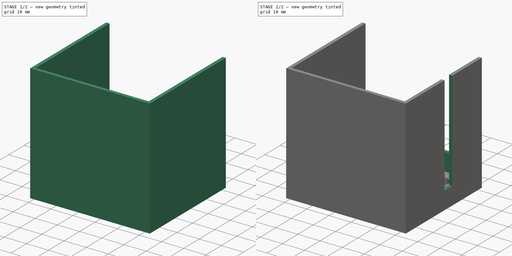
[diagram: build sequence overview — one tinted view per stage of 2, left to right]
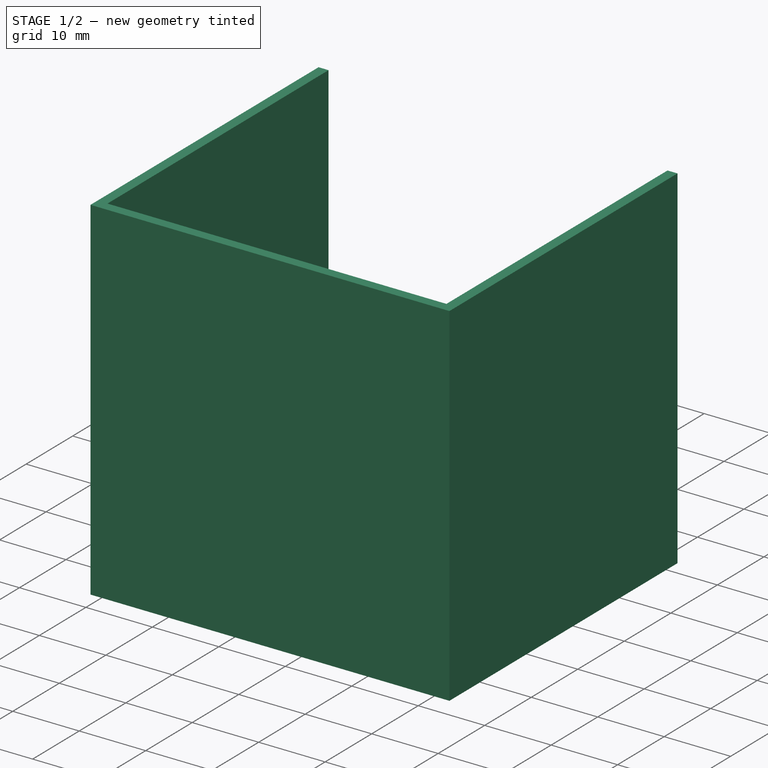
[diagram: stage 1 of 2 — iso view after this stage's code; geometry added in this stage tinted green]
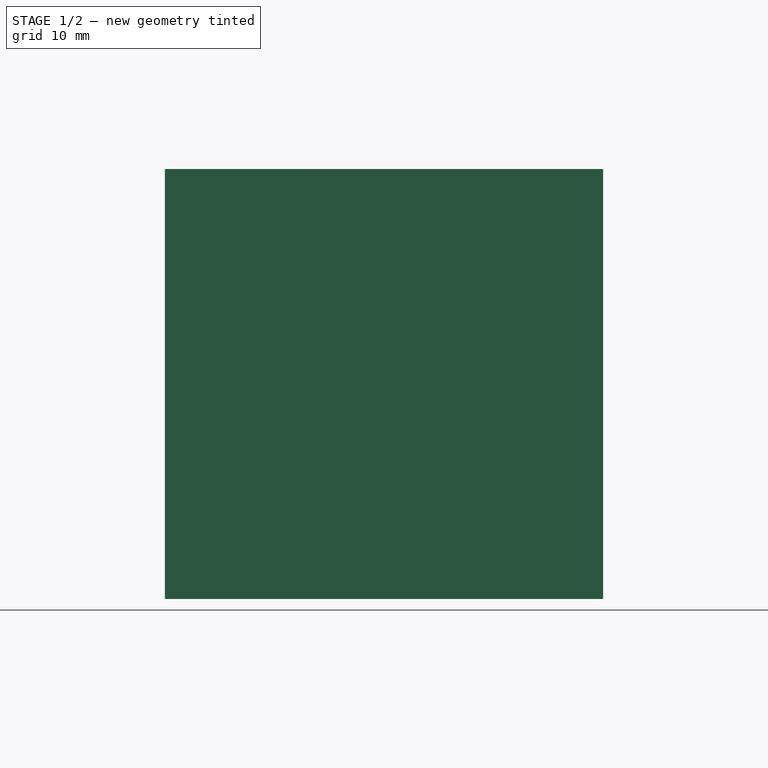
[diagram: stage 1 of 2 — front view after this stage's code; geometry added in this stage tinted green]
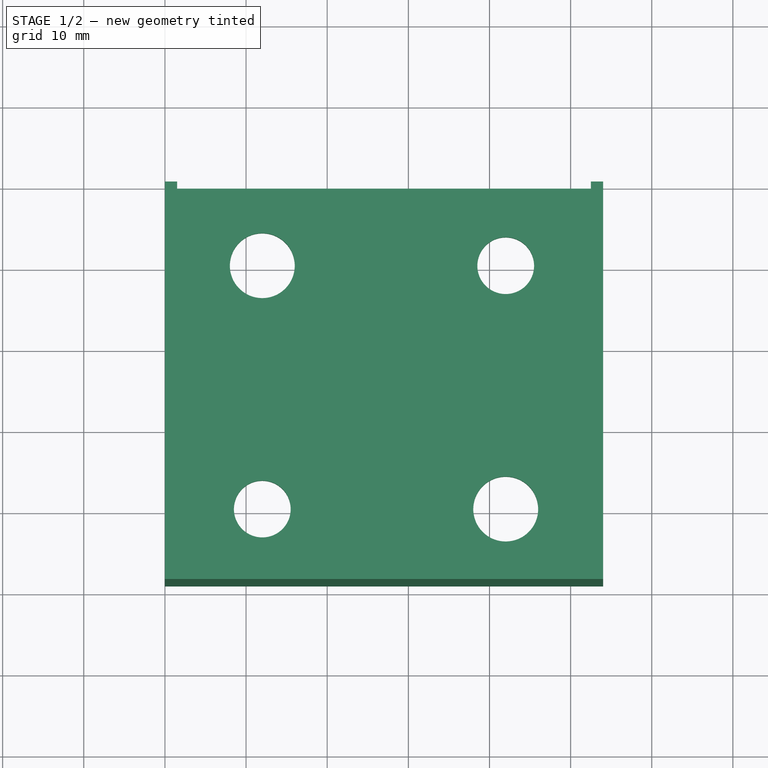
[diagram: stage 1 of 2 — top view after this stage's code; geometry added in this stage tinted green]
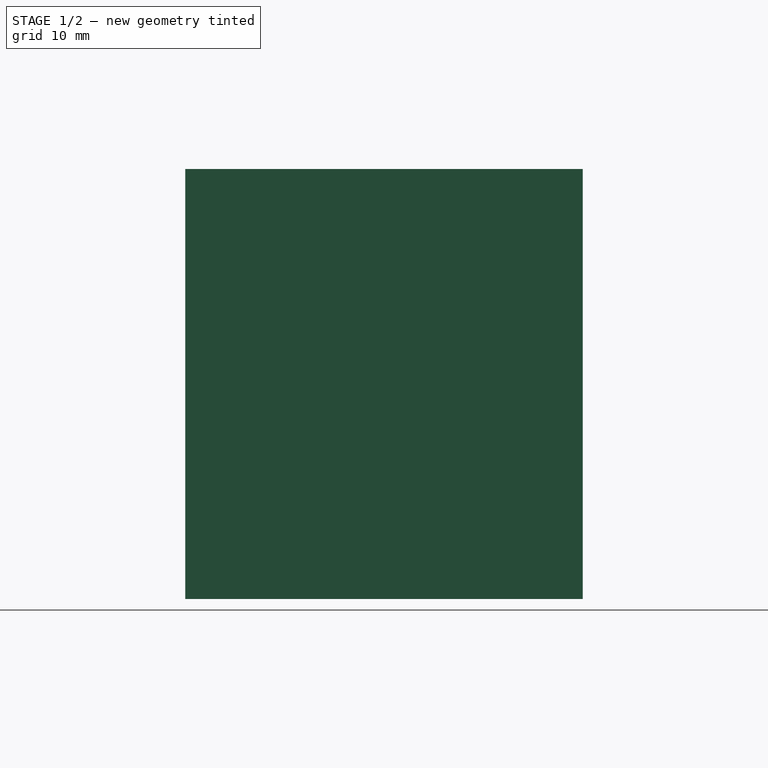
[diagram: stage 1 of 2 — right view after this stage's code; geometry added in this stage tinted green]
FCSTD DOCUMENT  (FreeCAD 0.16R6712 (Git))
Label: LCM UVshelter1
License: All rights reserved
LicenseURL: http://en.wikipedia.org/wiki/All_rights_reserved
objects: Sketcher::SketchObject×4, PartDesign::Pad×3, PartDesign::Pocket×1
note: 12 computed .brp shape members not serialized (recipe doc carries the construction recipe); baked Part::Feature solids carry a one-line shape summary decoded from their .brp

FEATURE [Sketcher::SketchObject] Sketch
  sketch-geometry (9):
    g0: LineSegment StartX=0 StartY=0 StartZ=0 EndX=54 EndY=0 EndZ=0
    g1: LineSegment StartX=54 StartY=0 StartZ=0 EndX=54 EndY=-49 EndZ=0
    g2: LineSegment StartX=54 StartY=-49 StartZ=0 EndX=0 EndY=-49 EndZ=0
    g3: LineSegment StartX=0 StartY=-49 StartZ=0 EndX=0 EndY=0 EndZ=0
    g4: GeomPoint [constr] X=27 Y=-24.5 Z=0
    g5: Circle CenterX=12 CenterY=-39.5 CenterZ=0 NormalX=0 NormalY=0 NormalZ=1 Radius=3.5
    g6: Circle CenterX=42 CenterY=-9.5 CenterZ=0 NormalX=0 NormalY=0 NormalZ=1 Radius=3.5
    g7: Circle CenterX=12 CenterY=-9.5 CenterZ=0 NormalX=0 NormalY=0 NormalZ=1 Radius=4
    g8: Circle CenterX=42 CenterY=-39.5 CenterZ=0 NormalX=0 NormalY=0 NormalZ=1 Radius=4
  constraints (25):
    c: Coincident(g0,g1)
    c: Coincident(g1,g2)
    c: Coincident(g2,g3)
    c: Coincident(g3,g0)
    c: Horizontal(g0)
    c: Horizontal(g2)
    c: Vertical(g1)
    c: Vertical(g3)
    c: Coincident(g0,g-1)
    c: DistanceX(g0,g0) = 54
    c: DistanceY(g3,g3) = 49
    c: DistanceX(g-1,g4) = 27
    c: DistanceY(g4,g-1) = 24.5
    c: Radius(g5) = 3.5
    c: Equal(g5,g6)
    c: Radius(g7) = 4
    c: Equal(g7,g8)
    c: DistanceY(g8,g5) = 0
    c: DistanceX(g8,g6) = 0
    c: DistanceY(g6,g7) = 0
    c: DistanceX(g7,g5) = 0
    c: DistanceX(g7,g4) = 15
    c: DistanceY(g4,g7) = 15
    c: DistanceY(g5,g4) = 15
    c: DistanceX(g4,g8) = 15
FEATURE [PartDesign::Pad] Pad
  Length = 3
  Length2 = 100
  Sketch = -> Sketch
  Type = 0
FEATURE [Sketcher::SketchObject] Sketch001
  Placement = pos=(0,0,3) rot=(0,0,1;0rad)
  Support = -> Pad [Face10]
  sketch-geometry (8):
    g0: LineSegment StartX=0 StartY=0 StartZ=0 EndX=0 EndY=-49 EndZ=0
    g1: LineSegment StartX=0 StartY=-49 StartZ=0 EndX=54 EndY=-49 EndZ=0
    g2: LineSegment StartX=54 StartY=-49 StartZ=0 EndX=54 EndY=0 EndZ=0
    g3: LineSegment StartX=1.5 StartY=0 StartZ=0 EndX=1.5 EndY=-47.5 EndZ=0
    g4: LineSegment StartX=1.5 StartY=-47.5 StartZ=0 EndX=52.5 EndY=-47.5 EndZ=0
    g5: LineSegment StartX=52.5 StartY=-47.5 StartZ=0 EndX=52.5 EndY=0 EndZ=0
    g6: LineSegment StartX=52.5 StartY=0 StartZ=0 EndX=54 EndY=0 EndZ=0
    g7: LineSegment StartX=0 StartY=0 StartZ=0 EndX=1.5 EndY=0 EndZ=0
  constraints (23):
    c: Vertical(g0)
    c: Horizontal(g1)
    c: Vertical(g2)
    c: Vertical(g3)
    c: Horizontal(g4)
    c: Vertical(g5)
    c: Horizontal(g6)
    c: Horizontal(g7)
    c: Coincident(g0,g7)
    c: Coincident(g3,g7)
    c: Coincident(g0,g1)
    c: Coincident(g4,g3)
    c: Coincident(g4,g5)
    c: Coincident(g1,g2)
    c: Coincident(g5,g6)
    c: Coincident(g2,g6)
    c: DistanceY(g0,g0) = 49
    c: DistanceX(g7,g7) = 1.5
    c: DistanceY(g3,g3) = 47.5
    c: DistanceX(g1,g1) = 54
    c: DistanceX(g4,g4) = 51
    c: DistanceY(g5,g5) = 47.5
    c: Coincident(g0,g-1)
FEATURE [PartDesign::Pad] Pad001
  Length = 50
  Length2 = 100
  Sketch = -> Sketch001
  Type = 0
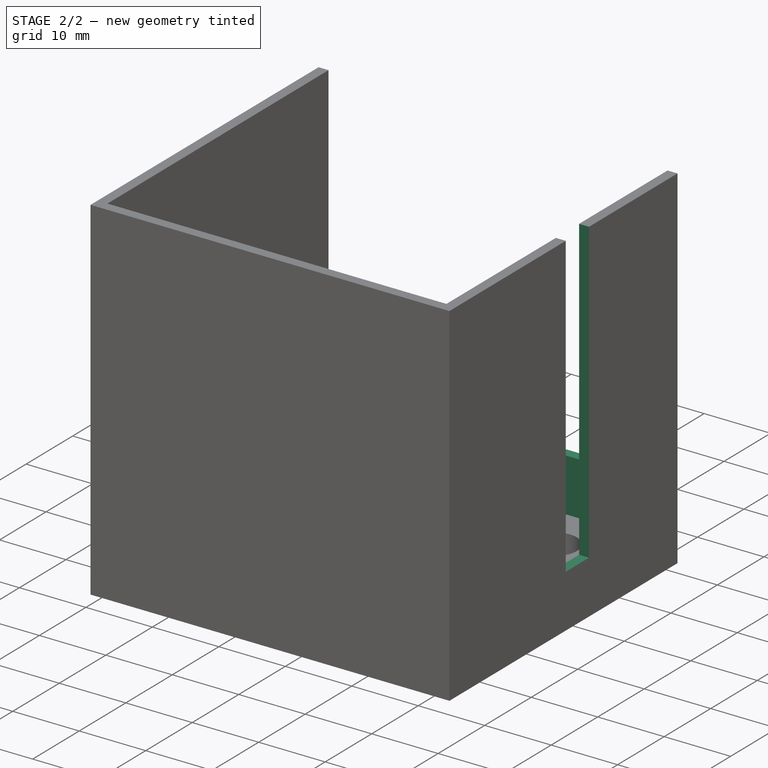
[diagram: stage 2 of 2 — iso view after this stage's code; geometry added in this stage tinted green]
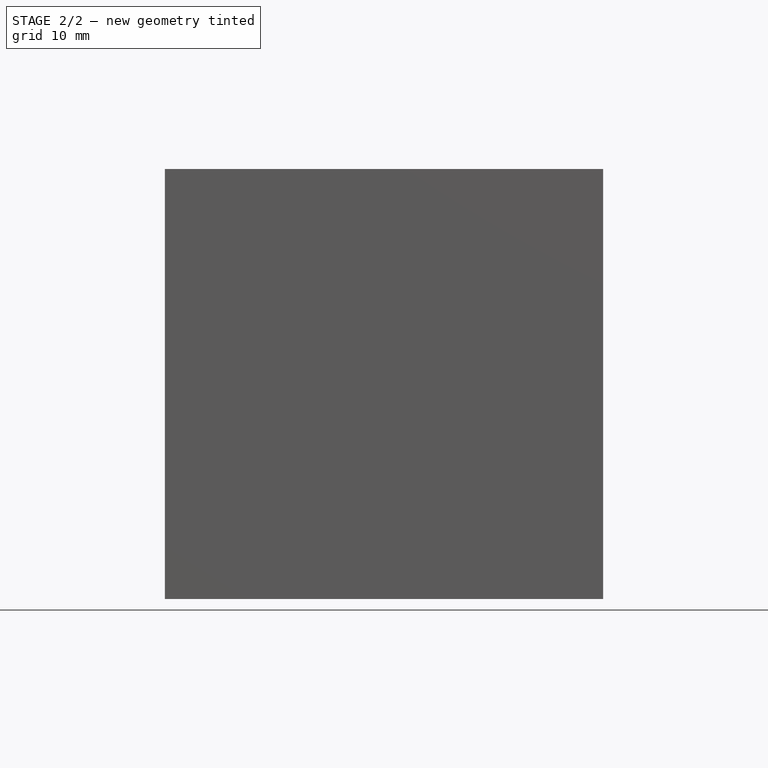
[diagram: stage 2 of 2 — front view after this stage's code; geometry added in this stage tinted green]
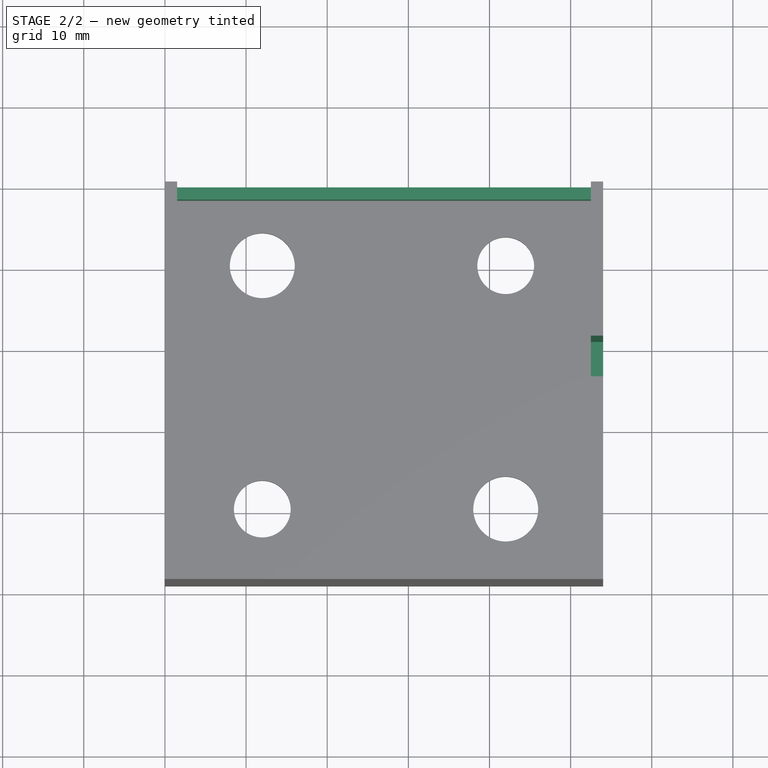
[diagram: stage 2 of 2 — top view after this stage's code; geometry added in this stage tinted green]
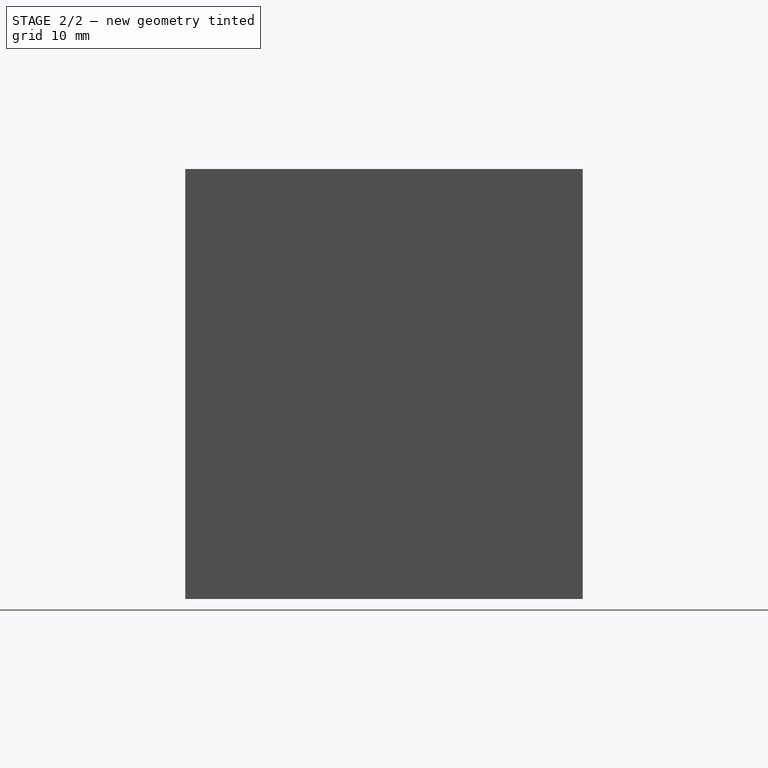
[diagram: stage 2 of 2 — right view after this stage's code; geometry added in this stage tinted green]
FEATURE [Sketcher::SketchObject] Sketch002
  ExternalGeometry = -> [Pad001]
  Placement = pos=(54,0,0) rot=(0.57735,0.57735,0.57735;2.0944rad)
  Support = -> Pad001 [Face13]
  sketch-geometry (4):
    g0: LineSegment StartX=-24 StartY=53 StartZ=0 EndX=-19 EndY=53 EndZ=0
    g1: LineSegment StartX=-19 StartY=53 StartZ=0 EndX=-19 EndY=8 EndZ=0
    g2: LineSegment StartX=-19 StartY=8 StartZ=0 EndX=-24 EndY=8 EndZ=0
    g3: LineSegment StartX=-24 StartY=8 StartZ=0 EndX=-24 EndY=53 EndZ=0
  constraints (12):
    c: Coincident(g0,g1)
    c: Coincident(g1,g2)
    c: Coincident(g2,g3)
    c: Coincident(g3,g0)
    c: Horizontal(g0)
    c: Horizontal(g2)
    c: Vertical(g1)
    c: Vertical(g3)
    c: DistanceX(g2,g2) = 5
    c: DistanceY(g3,g3) = 45
    c: DistanceX(g-3,g2) = 25
    c: DistanceY(g0,g-4) = 0
FEATURE [PartDesign::Pocket] Pocket
  Length = 1.5
  Sketch = -> Sketch002
  Type = 0
FEATURE [Sketcher::SketchObject] Sketch003
  ExternalGeometry = -> [Pocket]
  Placement = pos=(0,0,3) rot=(0,0,1;0rad)
  Support = -> Pocket [Face11]
  sketch-geometry (4):
    g0: LineSegment StartX=1.5 StartY=-1.5 StartZ=0 EndX=52.5 EndY=-1.5 EndZ=0
    g1: LineSegment StartX=52.5 StartY=-1.5 StartZ=0 EndX=52.5 EndY=0 EndZ=0
    g2: LineSegment StartX=52.5 StartY=0 StartZ=0 EndX=1.5 EndY=0 EndZ=0
    g3: LineSegment StartX=1.5 StartY=0 StartZ=0 EndX=1.5 EndY=-1.5 EndZ=0
  constraints (11):
    c: Coincident(g0,g1)
    c: Coincident(g1,g2)
    c: Coincident(g2,g3)
    c: Coincident(g3,g0)
    c: Horizontal(g0)
    c: Horizontal(g2)
    c: Vertical(g1)
    c: Vertical(g3)
    c: DistanceX(g0,g0) = 51
    c: DistanceY(g1,g1) = 1.5
    c: Coincident(g2,g-3)
FEATURE [PartDesign::Pad] Pad002
  Length = 8
  Length2 = 100
  Sketch = -> Sketch003
  Type = 0
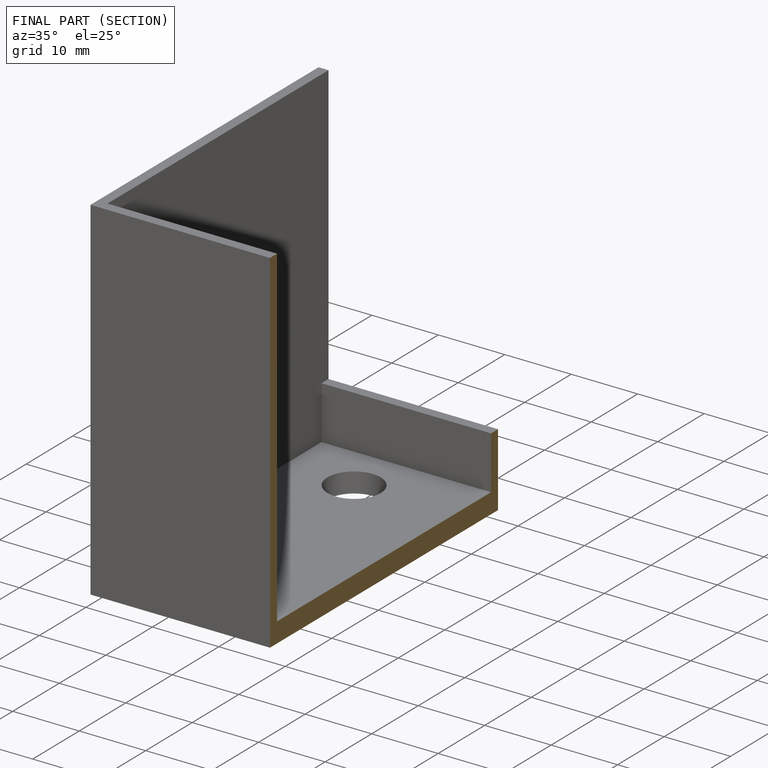
[diagram: finished part — half-section view (interior)]
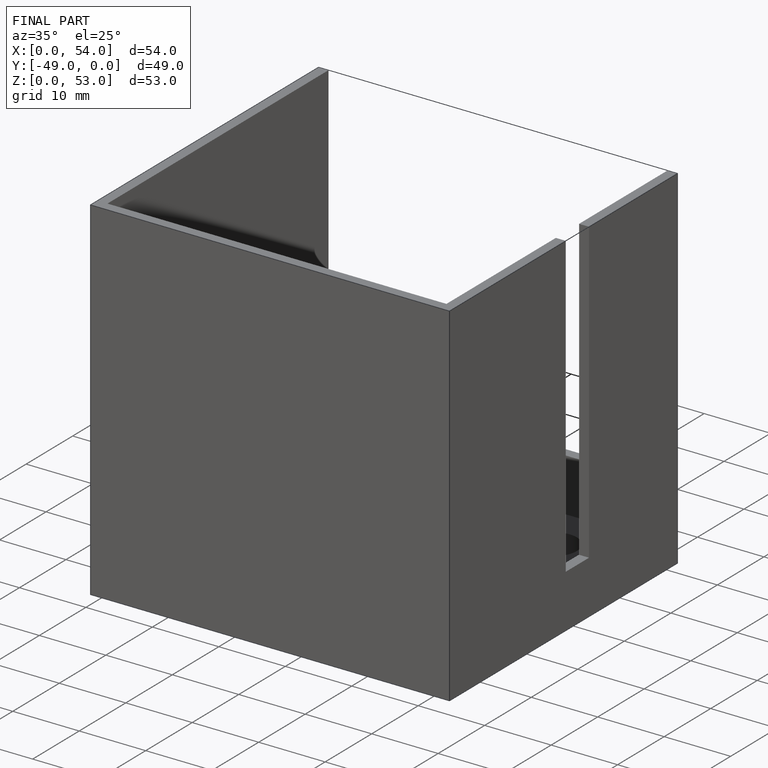
[diagram: finished part — iso view with bounding-box wireframe]
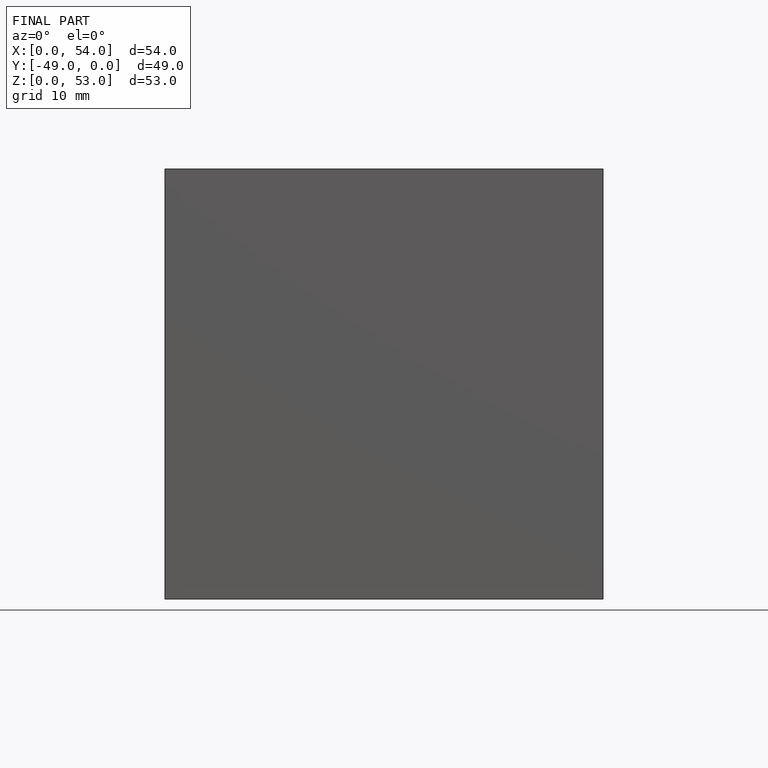
[diagram: finished part — front view with bounding-box wireframe]
